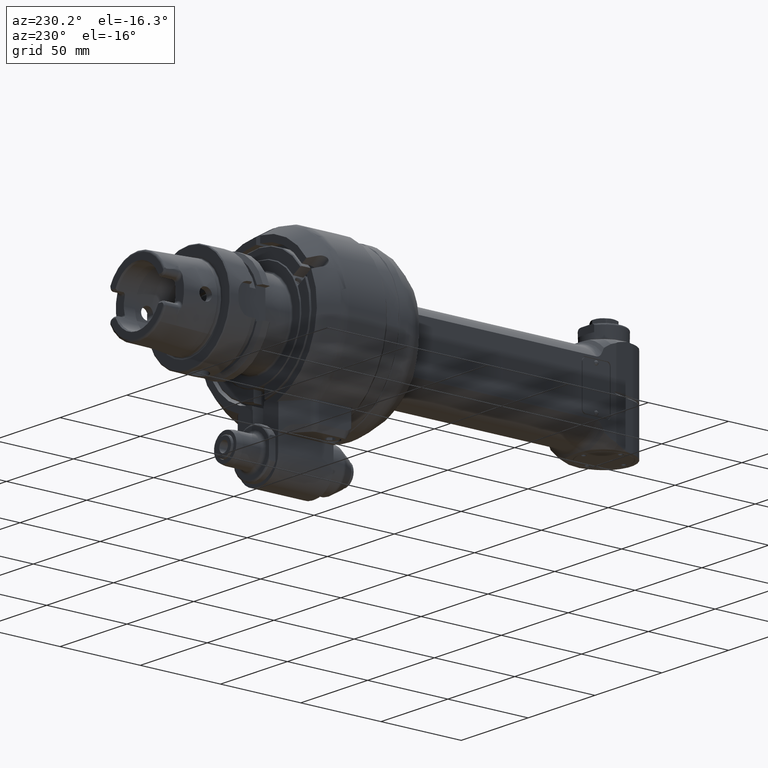
[diagram: clean part render]
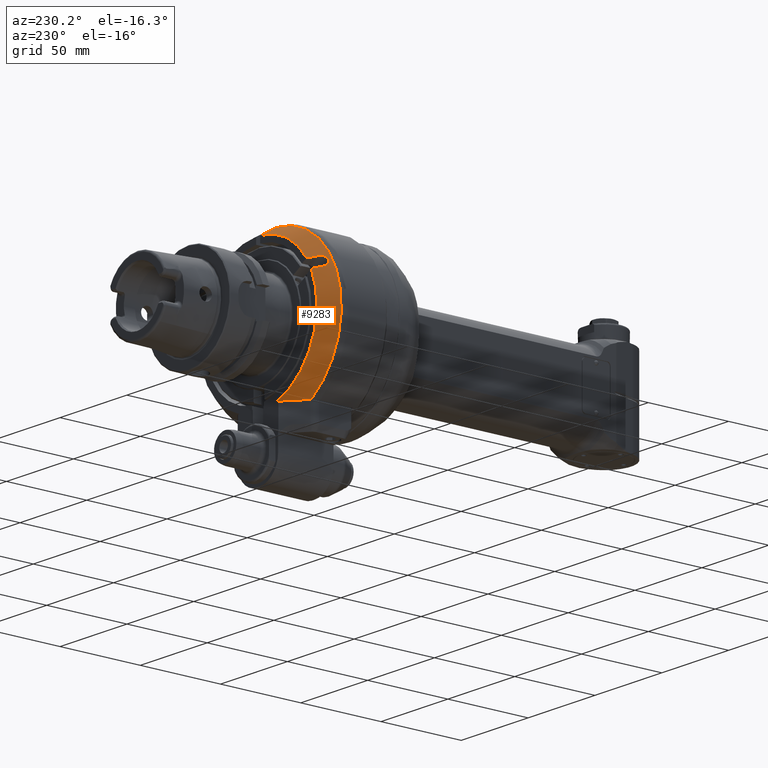
[diagram: same view with one face highlighted and labeled with its STEP entity id]
A machine part, auxiliary view. The second image highlights one B-rep face of the part: STEP entity #9283.
In plain terms, the highlighted conical surface has half-angle 30 deg.
Its self-contained STEP definition (entity closure, byte-faithful):
#448=(
BOUNDED_CURVE()
B_SPLINE_CURVE(2,(#13858,#13859,#13860),.UNSPECIFIED.,.F.,.F.)
B_SPLINE_CURVE_WITH_KNOTS((3,3),(-2.43290769105801,-0.320305328668483),
 .UNSPECIFIED.)
CURVE()
GEOMETRIC_REPRESENTATION_ITEM()
RATIONAL_B_SPLINE_CURVE((1.03252076511009,1.03062027413364,1.00749895945509))
REPRESENTATION_ITEM('')
);
#608=B_SPLINE_CURVE_WITH_KNOTS('',3,(#13999,#14000,#14001,#14002,#14003,
#14004,#14005,#14006,#14007,#14008),.UNSPECIFIED.,.F.,.F.,(4,3,3,4),(0.,
0.3333333333333,0.6666666666667,1.),.UNSPECIFIED.);
#611=B_SPLINE_CURVE_WITH_KNOTS('',3,(#14061,#14062,#14063,#14064,#14065,
#14066,#14067,#14068,#14069,#14070,#14071,#14072,#14073,#14074,#14075,#14076,
#14077,#14078),.UNSPECIFIED.,.F.,.F.,(4,2,2,2,2,2,2,2,4),(1.11206982951625,
1.24885677734264,1.4029266724495,1.5444028479349,1.68587902342029,1.82735519890569,
1.96883137439109,2.12290126949794,2.25968821732541),.UNSPECIFIED.);
#613=B_SPLINE_CURVE_WITH_KNOTS('',3,(#14100,#14101,#14102,#14103,#14104,
#14105,#14106,#14107,#14108,#14109),.UNSPECIFIED.,.F.,.F.,(4,3,3,4),(0.,
0.3333333333333,0.6666666666667,1.),.UNSPECIFIED.);
#614=B_SPLINE_CURVE_WITH_KNOTS('',3,(#14115,#14116,#14117,#14118,#14119,
#14120,#14121,#14122,#14123,#14124),.UNSPECIFIED.,.F.,.F.,(4,3,3,4),(0.,
0.3333333333333,0.6666666666667,1.),.UNSPECIFIED.);
#1014=CONICAL_SURFACE('',#10081,46.96410161514,0.523598775598299);
#1134=FACE_OUTER_BOUND('',#1696,.T.);
#1696=EDGE_LOOP('',(#6414,#6415,#6416,#6417,#6418,#6419,#6420,#6421));
#3560=CIRCLE('',#10082,49.92820323028);
#3561=CIRCLE('',#10083,44.);
#3562=CIRCLE('',#10084,44.);
#4012=VERTEX_POINT('',#13846);
#4013=VERTEX_POINT('',#13857);
#4036=VERTEX_POINT('',#13996);
#4037=VERTEX_POINT('',#13998);
#4050=VERTEX_POINT('',#14059);
#4051=VERTEX_POINT('',#14060);
#4055=VERTEX_POINT('',#14099);
#4056=VERTEX_POINT('',#14113);
#4933=EDGE_CURVE('',#4012,#4013,#448,.T.);
#4961=EDGE_CURVE('',#4037,#4036,#608,.T.);
#4979=EDGE_CURVE('',#4050,#4051,#611,.F.);
#4986=EDGE_CURVE('',#4050,#4055,#613,.T.);
#4988=EDGE_CURVE('',#4037,#4012,#3560,.T.);
#4989=EDGE_CURVE('',#4056,#4036,#3561,.T.);
#4990=EDGE_CURVE('',#4056,#4051,#614,.T.);
#4991=EDGE_CURVE('',#4013,#4055,#3562,.T.);
#6414=ORIENTED_EDGE('',*,*,#4988,.F.);
#6415=ORIENTED_EDGE('',*,*,#4961,.T.);
#6416=ORIENTED_EDGE('',*,*,#4989,.F.);
#6417=ORIENTED_EDGE('',*,*,#4990,.T.);
#6418=ORIENTED_EDGE('',*,*,#4979,.F.);
#6419=ORIENTED_EDGE('',*,*,#4986,.T.);
#6420=ORIENTED_EDGE('',*,*,#4991,.F.);
#6421=ORIENTED_EDGE('',*,*,#4933,.F.);
#9283=ADVANCED_FACE('',(#1134),#1014,.T.);
#10081=AXIS2_PLACEMENT_3D('',#14111,#11201,#11202);
#10082=AXIS2_PLACEMENT_3D('',#14112,#11203,#11204);
#10083=AXIS2_PLACEMENT_3D('',#14114,#11205,#11206);
#10084=AXIS2_PLACEMENT_3D('',#14125,#11207,#11208);
#11201=DIRECTION('center_axis',(1.,0.,0.));
#11202=DIRECTION('ref_axis',(0.,-1.,0.));
#11203=DIRECTION('center_axis',(1.,0.,0.));
#11204=DIRECTION('ref_axis',(0.,-0.999548602989596,-0.0300431400080999));
#11205=DIRECTION('center_axis',(-1.,0.,0.));
#11206=DIRECTION('ref_axis',(0.,-0.567304004296905,-0.823508449688707));
#11207=DIRECTION('center_axis',(-1.,0.,0.));
#11208=DIRECTION('ref_axis',(0.,0.948863636363632,-0.315686235979311));
#13846=CARTESIAN_POINT('',(-41.23205080757,41.75,-27.38180011986));
#13857=CARTESIAN_POINT('',(-51.5,41.74999999999,-13.89019438316));
#13858=CARTESIAN_POINT('Ctrl Pts',(-41.2320508075673,41.75,-27.3818001198562));
#13859=CARTESIAN_POINT('Ctrl Pts',(-48.0442956678564,41.75,-20.2102413126131));
#13860=CARTESIAN_POINT('Ctrl Pts',(-51.4999999999632,41.75,-13.8901943831554));
#13996=CARTESIAN_POINT('',(-51.5,-43.97442438509,-1.5));
#13998=CARTESIAN_POINT('',(-41.2320595617708,-49.9056607292726,-1.50000007595379));
#13999=CARTESIAN_POINT('Ctrl Pts',(-41.23206831446,-49.90565567486,-1.5));
#14000=CARTESIAN_POINT('Ctrl Pts',(-42.37293045262,-49.24668115316,-1.5));
#14001=CARTESIAN_POINT('Ctrl Pts',(-43.5138242319948,-48.5876765558151,
-1.5));
#14002=CARTESIAN_POINT('Ctrl Pts',(-44.6547122553555,-47.928662020786,-1.5));
#14003=CARTESIAN_POINT('Ctrl Pts',(-45.7956002787165,-47.2696474857567,
-1.5));
#14004=CARTESIAN_POINT('Ctrl Pts',(-46.9364825460635,-46.6106230130433,
-1.5));
#14005=CARTESIAN_POINT('Ctrl Pts',(-48.077363540237,-45.9515842405615,-1.5));
#14006=CARTESIAN_POINT('Ctrl Pts',(-49.2182445344102,-45.2925454680799,
-1.5));
#14007=CARTESIAN_POINT('Ctrl Pts',(-50.35912425541,-44.63349239583,-1.5));
#14008=CARTESIAN_POINT('Ctrl Pts',(-51.5,-43.97442438509,-1.5));
#14059=CARTESIAN_POINT('',(-46.5,-20.34687855495,-42.24182743261));
#14060=CARTESIAN_POINT('',(-46.5,-26.40905638145,-38.74182743261));
#14061=CARTESIAN_POINT('Ctrl Pts',(-46.5000000000002,-26.4090563814455,
-38.7418274326129));
#14062=CARTESIAN_POINT('Ctrl Pts',(-46.0992085079157,-26.5250786273062,
-38.9427838572518));
#14063=CARTESIAN_POINT('Ctrl Pts',(-45.6780271021362,-26.5877455833705,
-39.1945532832522));
#14064=CARTESIAN_POINT('Ctrl Pts',(-44.8336229766582,-26.5711996809164,
-39.7934207779667));
#14065=CARTESIAN_POINT('Ctrl Pts',(-44.416786404141,-26.4721822625297,-40.1489075806805));
#14066=CARTESIAN_POINT('Ctrl Pts',(-43.7689100689263,-26.1383338430384,
-40.8117265913294));
#14067=CARTESIAN_POINT('Ctrl Pts',(-43.4858969585476,-25.8928265156274,
-41.1623315039927));
#14068=CARTESIAN_POINT('Ctrl Pts',(-43.1011571537054,-25.2551263794943,
-41.8163473322267));
#14069=CARTESIAN_POINT('Ctrl Pts',(-43.,-24.8621451840586,-42.1193241407055));
#14070=CARTESIAN_POINT('Ctrl Pts',(-43.,-24.0453321040545,-42.5909113923235));
#14071=CARTESIAN_POINT('Ctrl Pts',(-43.1011571537054,-23.5864558934365,
-42.779754686541));
#14072=CARTESIAN_POINT('Ctrl Pts',(-43.4858969585476,-22.7012115036422,
-43.0050112903121));
#14073=CARTESIAN_POINT('Ctrl Pts',(-43.7689100689263,-22.2748250788787,
-43.0423244163336));
#14074=CARTESIAN_POINT('Ctrl Pts',(-44.416786404141,-21.5338827677997,-43.000036123302));
#14075=CARTESIAN_POINT('Ctrl Pts',(-44.8336229766582,-21.1765134567462,
-42.908044321685));
#14076=CARTESIAN_POINT('Ctrl Pts',(-45.6780271021394,-20.6496060415937,
-42.6229397461805));
#14077=CARTESIAN_POINT('Ctrl Pts',(-46.0992085079223,-20.4629008008123,
-42.4427838572491));
#14078=CARTESIAN_POINT('Ctrl Pts',(-46.5000000000096,-20.3468785549518,
-42.2418274326083));
#14099=CARTESIAN_POINT('',(-51.5,-18.89919836257,-39.7343717863));
#14100=CARTESIAN_POINT('Ctrl Pts',(-46.5000000000021,-20.3468785549516,
-42.2418274326133));
#14101=CARTESIAN_POINT('Ctrl Pts',(-47.0555636796788,-20.1860524218991,
-41.9632683989681));
#14102=CARTESIAN_POINT('Ctrl Pts',(-47.6111251834313,-20.0252176577258,
-41.6846944543344));
#14103=CARTESIAN_POINT('Ctrl Pts',(-48.1666839961781,-19.864373839952,-41.4061048113106));
#14104=CARTESIAN_POINT('Ctrl Pts',(-48.7222428089251,-19.7035300221781,
-41.1275151682867));
#14105=CARTESIAN_POINT('Ctrl Pts',(-49.2777989309903,-19.5426771511998,
-40.8489098273047));
#14106=CARTESIAN_POINT('Ctrl Pts',(-49.8333517949414,-19.381814745264,-40.5702879469552));
#14107=CARTESIAN_POINT('Ctrl Pts',(-50.3889046588924,-19.2209523393283,
-40.2916660666057));
#14108=CARTESIAN_POINT('Ctrl Pts',(-50.9444542651007,-19.0600803989606,
-40.0130276473512));
#14109=CARTESIAN_POINT('Ctrl Pts',(-51.5000000000014,-18.8991983625711,
-39.7343717863022));
#14111=CARTESIAN_POINT('Origin',(-46.36602540378,0.,0.));
#14112=CARTESIAN_POINT('Origin',(-41.23205080757,0.,0.));
#14113=CARTESIAN_POINT('',(-51.5,-24.96137618907,-36.2343717863));
#14114=CARTESIAN_POINT('Origin',(-51.5,0.,0.));
#14115=CARTESIAN_POINT('Ctrl Pts',(-51.4999999999995,-24.9613761890695,
-36.2343717862992));
#14116=CARTESIAN_POINT('Ctrl Pts',(-50.9444542651011,-25.1222582254511,
-36.5130276473516));
#14117=CARTESIAN_POINT('Ctrl Pts',(-50.3889046588926,-25.2831302048165,
-36.7916660440905));
#14118=CARTESIAN_POINT('Ctrl Pts',(-49.8333517949413,-25.4439926282826,
-37.070287914319));
#14119=CARTESIAN_POINT('Ctrl Pts',(-49.2777989309897,-25.6048550517487,
-37.3489097845476));
#14120=CARTESIAN_POINT('Ctrl Pts',(-48.7222428089239,-25.7657079191777,
-37.6275151275794));
#14121=CARTESIAN_POINT('Ctrl Pts',(-48.166683996177,-25.9265517183818,-37.9061047813243));
#14122=CARTESIAN_POINT('Ctrl Pts',(-47.6111251834304,-26.0873955175858,
-38.1846944350692));
#14123=CARTESIAN_POINT('Ctrl Pts',(-47.0555636796788,-26.2482302483888,
-38.4632683989682));
#14124=CARTESIAN_POINT('Ctrl Pts',(-46.5,-26.40905638145,-38.74182743261));
#14125=CARTESIAN_POINT('Origin',(-51.5,0.,0.));